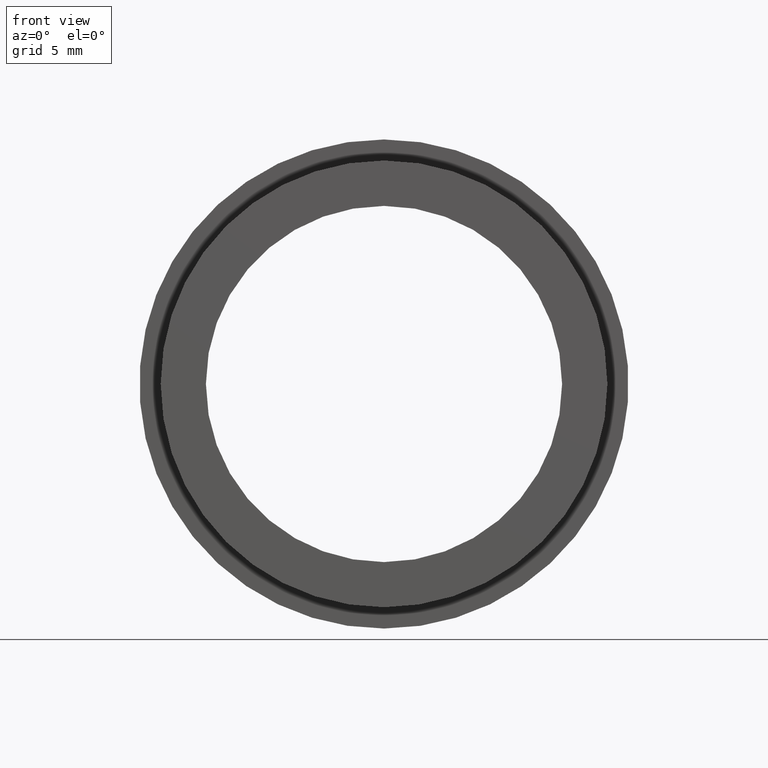
[diagram: clean part render]
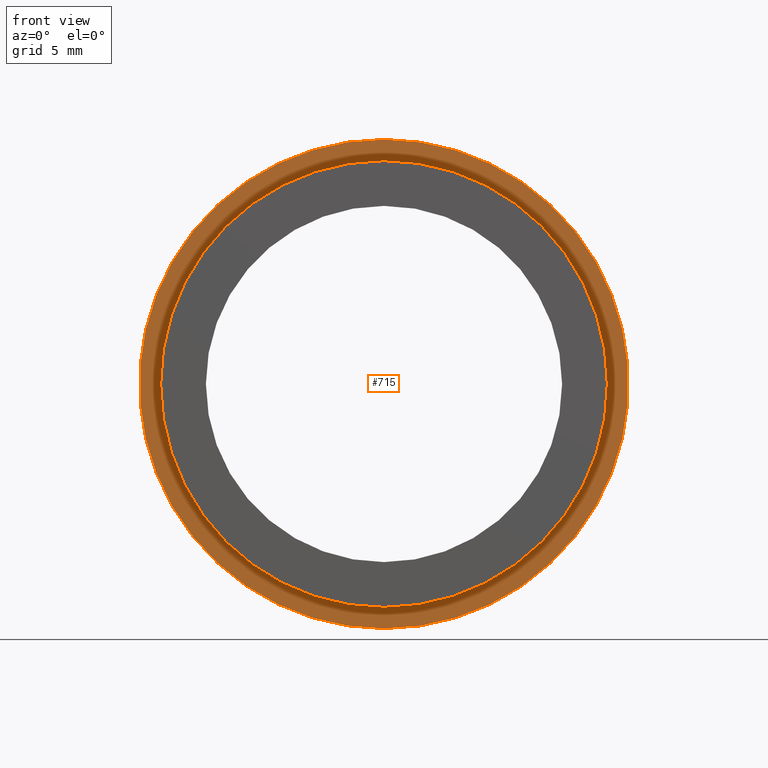
[diagram: same view with one face highlighted and labeled with its STEP entity id]
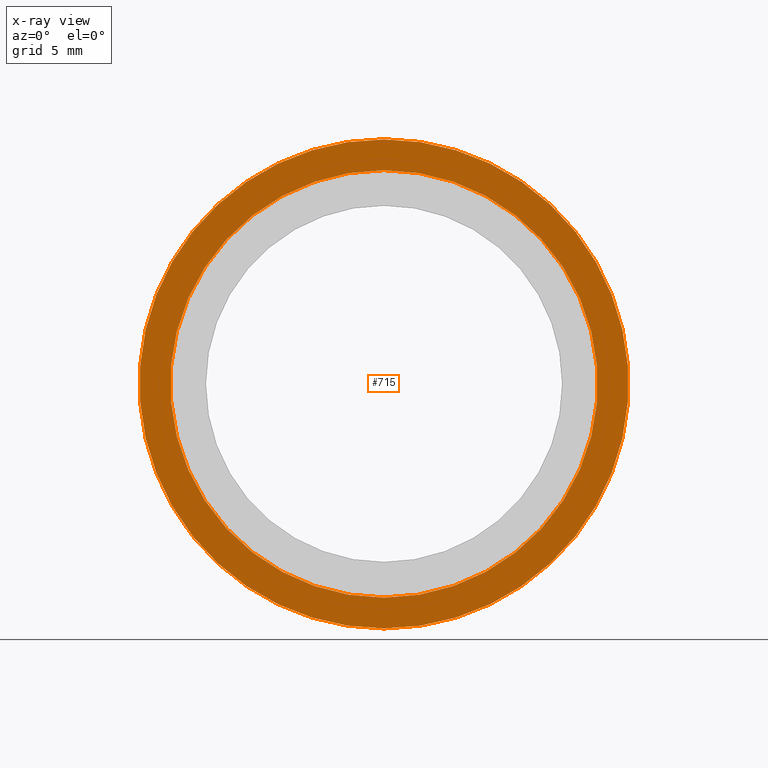
[diagram: x-ray of the same camera — body ghosted, the highlighted face saturated]
A machine part, front view. The second image highlights one B-rep face of the part: STEP entity #715.
The next image is the same camera in x-ray: the body ghosted, the highlighted face saturated — about 0% of this face is hidden behind the body in this view.
In plain terms, the highlighted planar face has unit normal (0, -1, -0).
Its self-contained STEP definition (entity closure, byte-faithful):
#33 = EDGE_CURVE ( 'NONE', #406, #328, #682, .T. ) ;
#50 = EDGE_LOOP ( 'NONE', ( #638, #408 ) ) ;
#74 = AXIS2_PLACEMENT_3D ( 'NONE', #476, #193, #135 ) ;
#90 = CARTESIAN_POINT ( 'NONE',  ( 0.0000000000000000000, 3.500000000000000000, -12.69999999999999900 ) ) ;
#97 = PLANE ( 'NONE',  #174 ) ;
#108 = CARTESIAN_POINT ( 'NONE',  ( 1.555301434917138400E-015, 3.500000000000000000, 12.69999999999999900 ) ) ;
#113 = EDGE_CURVE ( 'NONE', #328, #406, #546, .T. ) ;
#135 = DIRECTION ( 'NONE',  ( 0.0000000000000000000, 0.0000000000000000000, -1.000000000000000000 ) ) ;
#166 = CIRCLE ( 'NONE', #256, 11.10000000000000000 ) ;
#174 = AXIS2_PLACEMENT_3D ( 'NONE', #378, #204, #213 ) ;
#177 = DIRECTION ( 'NONE',  ( 0.0000000000000000000, 0.0000000000000000000, -1.000000000000000000 ) ) ;
#182 = VERTEX_POINT ( 'NONE', #247 ) ;
#193 = DIRECTION ( 'NONE',  ( -0.0000000000000000000, -1.000000000000000000, -0.0000000000000000000 ) ) ;
#200 = ORIENTED_EDGE ( 'NONE', *, *, #500, .F. ) ;
#204 = DIRECTION ( 'NONE',  ( 0.0000000000000000000, -1.000000000000000000, -0.0000000000000000000 ) ) ;
#213 = DIRECTION ( 'NONE',  ( 0.0000000000000000000, 0.0000000000000000000, -1.000000000000000000 ) ) ;
#247 = CARTESIAN_POINT ( 'NONE',  ( 0.0000000000000000000, 3.500000000000000000, -11.10000000000000000 ) ) ;
#256 = AXIS2_PLACEMENT_3D ( 'NONE', #514, #678, #679 ) ;
#305 = FACE_BOUND ( 'NONE', #608, .T. ) ;
#324 = CIRCLE ( 'NONE', #340, 11.10000000000000000 ) ;
#328 = VERTEX_POINT ( 'NONE', #90 ) ;
#340 = AXIS2_PLACEMENT_3D ( 'NONE', #423, #537, #492 ) ;
#352 = DIRECTION ( 'NONE',  ( -0.0000000000000000000, -1.000000000000000000, -0.0000000000000000000 ) ) ;
#375 = FACE_OUTER_BOUND ( 'NONE', #50, .T. ) ;
#378 = CARTESIAN_POINT ( 'NONE',  ( 11.10000000000000000, 3.500000000000000000, 0.0000000000000000000 ) ) ;
#406 = VERTEX_POINT ( 'NONE', #108 ) ;
#408 = ORIENTED_EDGE ( 'NONE', *, *, #33, .T. ) ;
#423 = CARTESIAN_POINT ( 'NONE',  ( 0.0000000000000000000, 3.500000000000000000, 0.0000000000000000000 ) ) ;
#440 = AXIS2_PLACEMENT_3D ( 'NONE', #507, #352, #177 ) ;
#476 = CARTESIAN_POINT ( 'NONE',  ( 0.0000000000000000000, 3.500000000000000000, 0.0000000000000000000 ) ) ;
#492 = DIRECTION ( 'NONE',  ( 0.0000000000000000000, 0.0000000000000000000, -1.000000000000000000 ) ) ;
#500 = EDGE_CURVE ( 'NONE', #683, #182, #166, .T. ) ;
#507 = CARTESIAN_POINT ( 'NONE',  ( 0.0000000000000000000, 3.500000000000000000, 0.0000000000000000000 ) ) ;
#514 = CARTESIAN_POINT ( 'NONE',  ( 0.0000000000000000000, 3.500000000000000000, 0.0000000000000000000 ) ) ;
#537 = DIRECTION ( 'NONE',  ( -0.0000000000000000000, -1.000000000000000000, -0.0000000000000000000 ) ) ;
#546 = CIRCLE ( 'NONE', #74, 12.69999999999999900 ) ;
#595 = CARTESIAN_POINT ( 'NONE',  ( 1.359357947053562200E-015, 3.500000000000000000, 11.10000000000000000 ) ) ;
#608 = EDGE_LOOP ( 'NONE', ( #615, #200 ) ) ;
#615 = ORIENTED_EDGE ( 'NONE', *, *, #713, .F. ) ;
#638 = ORIENTED_EDGE ( 'NONE', *, *, #113, .T. ) ;
#678 = DIRECTION ( 'NONE',  ( -0.0000000000000000000, -1.000000000000000000, -0.0000000000000000000 ) ) ;
#679 = DIRECTION ( 'NONE',  ( 0.0000000000000000000, 0.0000000000000000000, -1.000000000000000000 ) ) ;
#682 = CIRCLE ( 'NONE', #440, 12.69999999999999900 ) ;
#683 = VERTEX_POINT ( 'NONE', #595 ) ;
#713 = EDGE_CURVE ( 'NONE', #182, #683, #324, .T. ) ;
#715 = ADVANCED_FACE ( 'NONE', ( #375, #305 ), #97, .T. ) ;